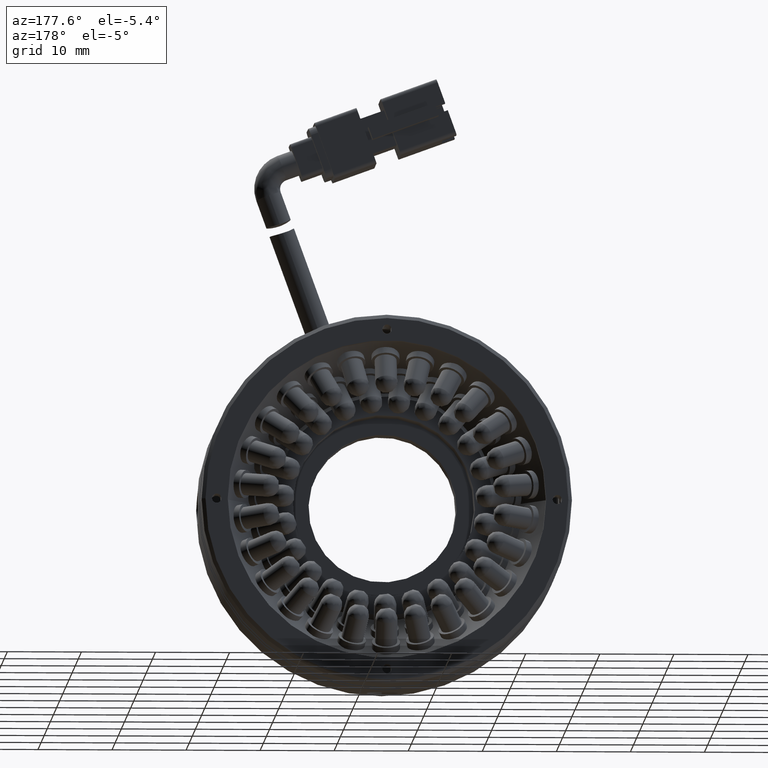
[diagram: clean part render]
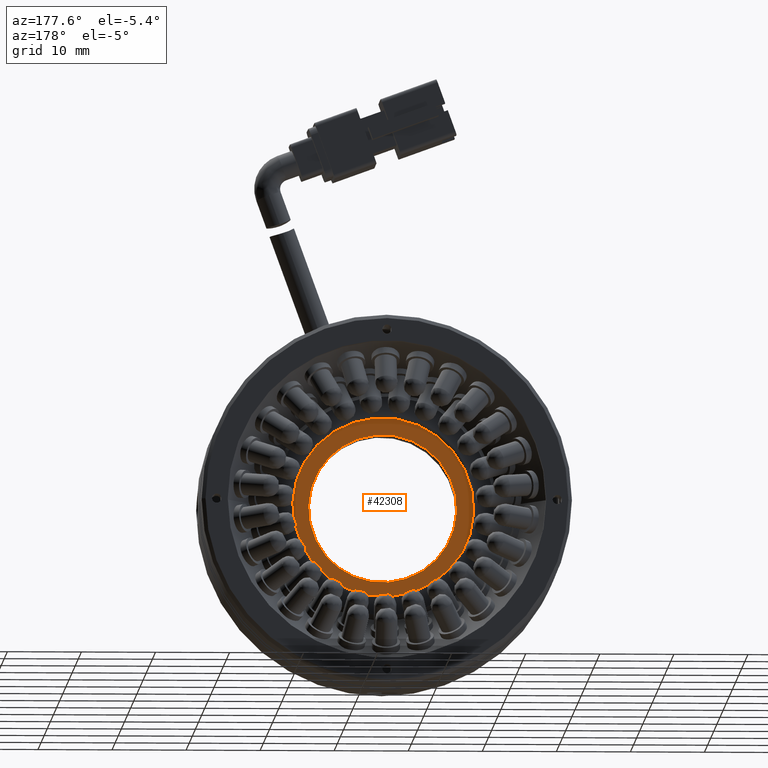
[diagram: same view with one face highlighted and labeled with its STEP entity id]
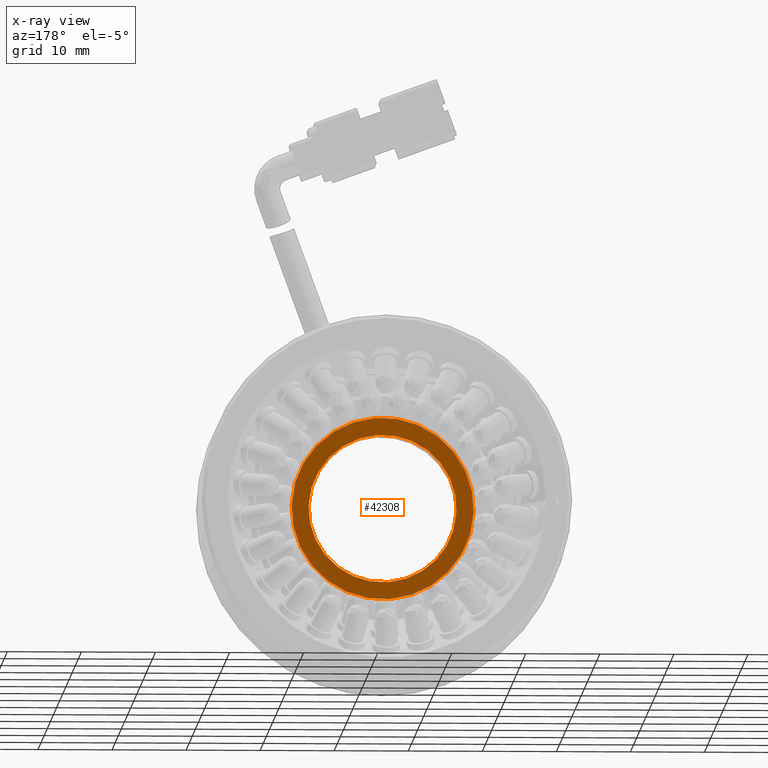
[diagram: x-ray of the same camera — body ghosted, the highlighted face saturated]
A machine part, auxiliary view. The second image highlights one B-rep face of the part: STEP entity #42308.
The next image is the same camera in x-ray: the body ghosted, the highlighted face saturated — about 0% of this face is hidden behind the body in this view.
In plain terms, the highlighted planar face has unit normal (0, -1, 0).
Its self-contained STEP definition (entity closure, byte-faithful):
#2504 = VERTEX_POINT ( 'NONE', #43287 ) ;
#5130 = VERTEX_POINT ( 'NONE', #44132 ) ;
#7008 = CARTESIAN_POINT ( 'NONE',  ( -93.72635228848822900, 7.127531206657423900, -5.037329277016266400E-015 ) ) ;
#7664 = VERTEX_POINT ( 'NONE', #38267 ) ;
#9010 = EDGE_LOOP ( 'NONE', ( #37993, #37577 ) ) ;
#10463 = EDGE_LOOP ( 'NONE', ( #36910, #36588 ) ) ;
#10556 = DIRECTION ( 'NONE',  ( -0.8660254037844380400, -1.410344289412037200E-016, -0.5000000000000008900 ) ) ;
#10614 = DIRECTION ( 'NONE',  ( 1.229783673277241900E-016, -1.000000000000000000, 6.123233995736763600E-017 ) ) ;
#10656 = CARTESIAN_POINT ( 'NONE',  ( -93.72635228848822900, 7.127531206657423900, -5.037329277016266400E-015 ) ) ;
#10999 = DIRECTION ( 'NONE',  ( -0.8660254037844380400, -1.410344289412037200E-016, -0.5000000000000008900 ) ) ;
#13079 = VERTEX_POINT ( 'NONE', #25676 ) ;
#14509 = DIRECTION ( 'NONE',  ( 1.229783673277240500E-016, -1.000000000000000000, 6.123233995736756200E-017 ) ) ;
#15663 = CIRCLE ( 'NONE', #50354, 10.00000000000000700 ) ;
#15895 = FACE_OUTER_BOUND ( 'NONE', #9010, .T. ) ;
#16459 = AXIS2_PLACEMENT_3D ( 'NONE', #38225, #14509, #42107 ) ;
#18486 = DIRECTION ( 'NONE',  ( 1.229783673277241900E-016, -1.000000000000000000, 6.123233995736763600E-017 ) ) ;
#19370 = DIRECTION ( 'NONE',  ( 1.229783673277241900E-016, -1.000000000000000000, 6.123233995736763600E-017 ) ) ;
#21172 = EDGE_CURVE ( 'NONE', #5130, #7664, #32888, .T. ) ;
#22317 = PLANE ( 'NONE',  #16459 ) ;
#25284 = FACE_BOUND ( 'NONE', #10463, .T. ) ;
#25676 = CARTESIAN_POINT ( 'NONE',  ( -85.06609825064384700, 7.127531206657422100, 5.000000000000009800 ) ) ;
#25973 = AXIS2_PLACEMENT_3D ( 'NONE', #42121, #18486, #45990 ) ;
#26222 = CIRCLE ( 'NONE', #49355, 12.30000000000001000 ) ;
#27064 = AXIS2_PLACEMENT_3D ( 'NONE', #10656, #10614, #10556 ) ;
#27131 = EDGE_CURVE ( 'NONE', #7664, #5130, #26222, .T. ) ;
#32888 = CIRCLE ( 'NONE', #27064, 12.30000000000001000 ) ;
#34667 = DIRECTION ( 'NONE',  ( 1.229783673277241900E-016, -1.000000000000000000, 6.123233995736763600E-017 ) ) ;
#36588 = ORIENTED_EDGE ( 'NONE', *, *, #38962, .T. ) ;
#36910 = ORIENTED_EDGE ( 'NONE', *, *, #45003, .T. ) ;
#37577 = ORIENTED_EDGE ( 'NONE', *, *, #21172, .F. ) ;
#37993 = ORIENTED_EDGE ( 'NONE', *, *, #27131, .F. ) ;
#38225 = CARTESIAN_POINT ( 'NONE',  ( -83.07423982193964200, 7.127531206657422100, 6.150000000000009200 ) ) ;
#38267 = CARTESIAN_POINT ( 'NONE',  ( -104.3784647550368300, 7.127531206657422100, -6.150000000000021700 ) ) ;
#38962 = EDGE_CURVE ( 'NONE', #13079, #2504, #45254, .T. ) ;
#42107 = DIRECTION ( 'NONE',  ( 0.8660254037844380400, 1.371185602004270100E-016, 0.5000000000000010000 ) ) ;
#42121 = CARTESIAN_POINT ( 'NONE',  ( -93.72635228848822900, 7.127531206657420300, -5.037329277016266400E-015 ) ) ;
#42308 = ADVANCED_FACE ( 'NONE', ( #15895, #25284 ), #22317, .F. ) ;
#42995 = CARTESIAN_POINT ( 'NONE',  ( -93.72635228848822900, 7.127531206657420300, -5.037329277016266400E-015 ) ) ;
#43287 = CARTESIAN_POINT ( 'NONE',  ( -102.3866063263326300, 7.127531206657418600, -5.000000000000019500 ) ) ;
#44132 = CARTESIAN_POINT ( 'NONE',  ( -83.07423982193964200, 7.127531206657425700, 6.150000000000011900 ) ) ;
#45003 = EDGE_CURVE ( 'NONE', #2504, #13079, #15663, .T. ) ;
#45254 = CIRCLE ( 'NONE', #25973, 10.00000000000000700 ) ;
#45990 = DIRECTION ( 'NONE',  ( -0.8660254037844381500, -1.734723475976805900E-016, -0.5000000000000011100 ) ) ;
#46818 = DIRECTION ( 'NONE',  ( -0.8660254037844381500, -1.734723475976805900E-016, -0.5000000000000011100 ) ) ;
#49355 = AXIS2_PLACEMENT_3D ( 'NONE', #7008, #34667, #10999 ) ;
#50354 = AXIS2_PLACEMENT_3D ( 'NONE', #42995, #19370, #46818 ) ;